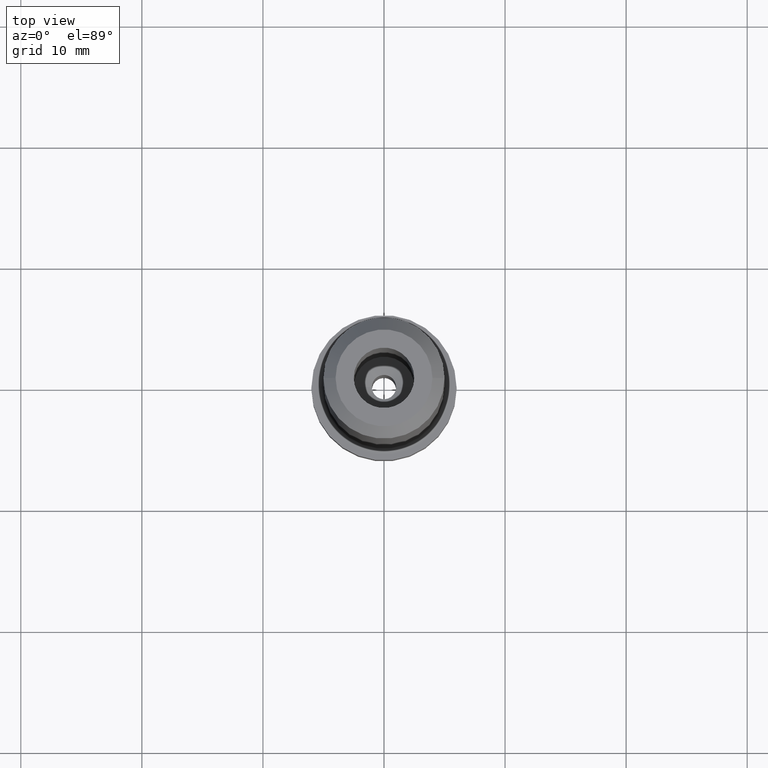
[diagram: clean part render]
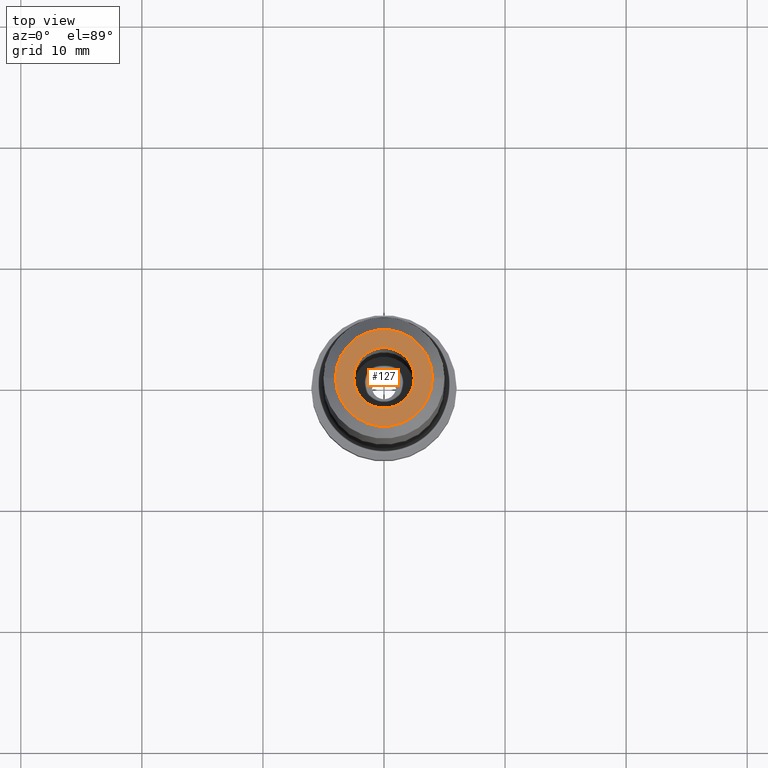
[diagram: same view with one face highlighted and labeled with its STEP entity id]
A machine part, top view. The second image highlights one B-rep face of the part: STEP entity #127.
In plain terms, the highlighted planar face has unit normal (0, 0, -1).
Its self-contained STEP definition (entity closure, byte-faithful):
#127=ADVANCED_FACE('NONE',(#329,#330),#331,.F.);
#139=VERTEX_POINT('NONE',#344);
#151=EDGE_CURVE('NONE',#253,#139,#358,.T.);
#189=EDGE_CURVE('NONE',#283,#255,#404,.T.);
#217=EDGE_CURVE('NONE',#139,#253,#437,.T.);
#253=VERTEX_POINT('NONE',#479);
#255=VERTEX_POINT('NONE',#481);
#275=EDGE_CURVE('NONE',#255,#283,#502,.T.);
#283=VERTEX_POINT('NONE',#510);
#329=FACE_OUTER_BOUND('',#552,.T.);
#330=FACE_BOUND('',#553,.T.);
#331=PLANE('',#554);
#344=CARTESIAN_POINT('',(-2.5,3.06151588455594E-016,52.0));
#358=CIRCLE('',#590,2.5);
#404=CIRCLE('',#645,4.0);
#437=CIRCLE('',#682,2.5);
#479=CARTESIAN_POINT('',(2.5,0.0,52.0));
#481=CARTESIAN_POINT('',(4.0,5.51072859220069E-016,52.0));
#502=CIRCLE('',#768,4.0);
#510=CARTESIAN_POINT('',(-4.0,0.0,52.0));
#552=EDGE_LOOP('',(#819,#820));
#553=EDGE_LOOP('',(#821,#822));
#554=AXIS2_PLACEMENT_3D('',#823,#824,#825);
#590=AXIS2_PLACEMENT_3D('',#869,#870,#871);
#645=AXIS2_PLACEMENT_3D('',#929,#930,#931);
#682=AXIS2_PLACEMENT_3D('',#977,#978,#979);
#768=AXIS2_PLACEMENT_3D('',#1056,#1057,#1058);
#819=ORIENTED_EDGE('',*,*,#189,.T.);
#820=ORIENTED_EDGE('',*,*,#275,.T.);
#821=ORIENTED_EDGE('',*,*,#151,.F.);
#822=ORIENTED_EDGE('',*,*,#217,.F.);
#823=CARTESIAN_POINT('',(0.0,5.0,52.0));
#824=DIRECTION('',(0.0,0.0,-1.0));
#825=DIRECTION('',(0.0,1.0,0.0));
#869=CARTESIAN_POINT('',(0.0,0.0,52.0));
#870=DIRECTION('',(0.0,0.0,1.0));
#871=DIRECTION('',(1.0,0.0,0.0));
#929=CARTESIAN_POINT('',(0.0,0.0,52.0));
#930=DIRECTION('',(0.0,0.0,1.0));
#931=DIRECTION('',(-1.0,0.0,0.0));
#977=CARTESIAN_POINT('',(0.0,0.0,52.0));
#978=DIRECTION('',(0.0,0.0,1.0));
#979=DIRECTION('',(1.0,0.0,0.0));
#1056=CARTESIAN_POINT('',(0.0,0.0,52.0));
#1057=DIRECTION('',(0.0,0.0,1.0));
#1058=DIRECTION('',(-1.0,0.0,0.0));